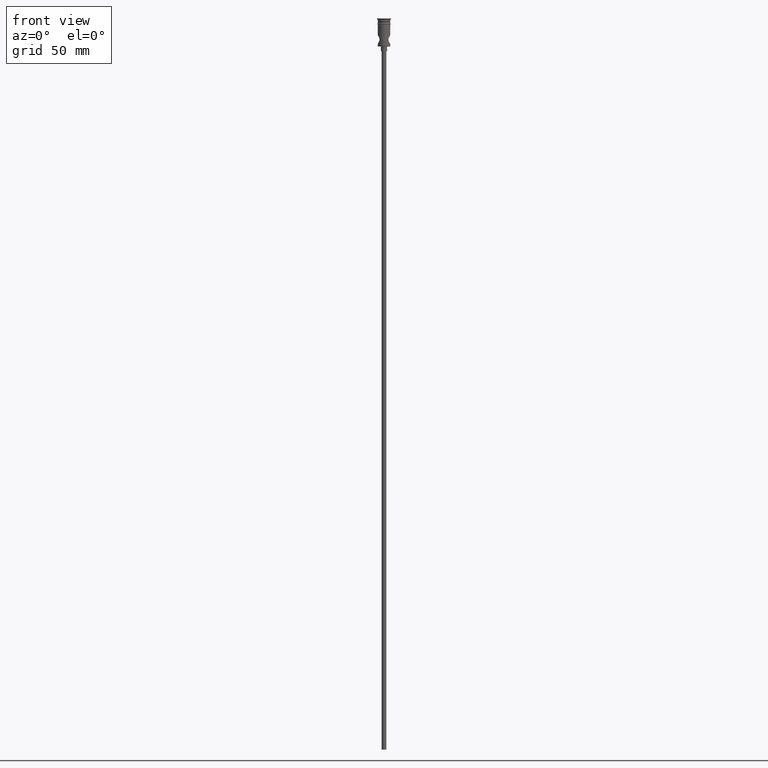
[diagram: clean part render]
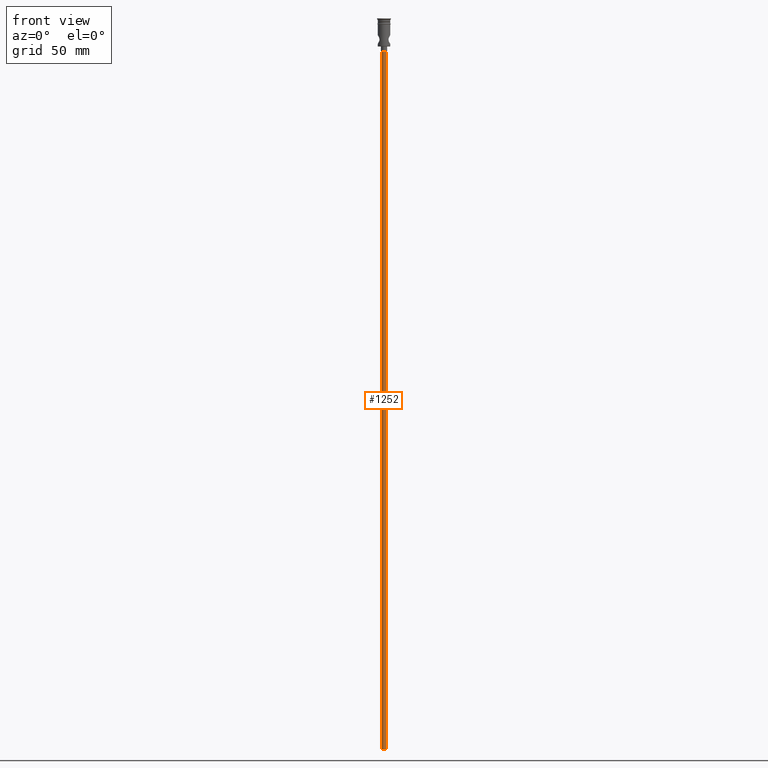
[diagram: same view with one face highlighted and labeled with its STEP entity id]
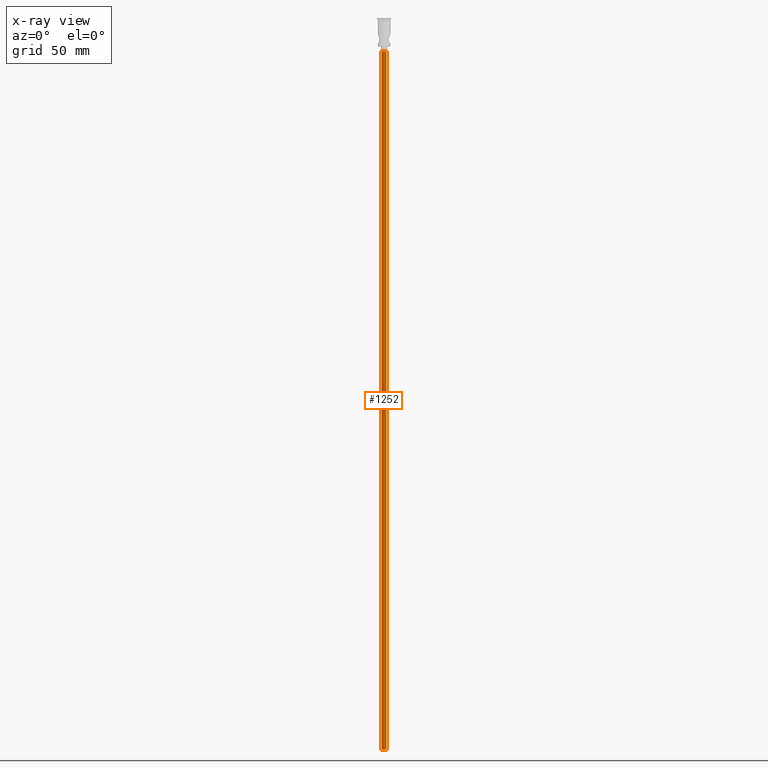
[diagram: x-ray of the same camera — body ghosted, the highlighted face saturated]
A machine part, front view. The second image highlights one B-rep face of the part: STEP entity #1252.
The next image is the same camera in x-ray: the body ghosted, the highlighted face saturated — about 0% of this face is hidden behind the body in this view.
In plain terms, the highlighted cylindrical surface (edge-blend (fillet) strip) has radius 1.5 mm, axis along (-0, -0, 1).
Its self-contained STEP definition (entity closure, byte-faithful):
#5 = CARTESIAN_POINT ( 'NONE',  ( -1.500000000000000222, 1.836970198721030181E-16, -468.0000000000000000 ) ) ;
#77 = VERTEX_POINT ( 'NONE', #1132 ) ;
#133 = AXIS2_PLACEMENT_3D ( 'NONE', #811, #473, #260 ) ;
#172 = DIRECTION ( 'NONE',  ( -1.000000000000000000, 0.000000000000000000, 0.000000000000000000 ) ) ;
#186 = ORIENTED_EDGE ( 'NONE', *, *, #1425, .F. ) ;
#202 = CIRCLE ( 'NONE', #1099, 1.500000000000000222 ) ;
#206 = VERTEX_POINT ( 'NONE', #1291 ) ;
#260 = DIRECTION ( 'NONE',  ( -1.000000000000000000, 0.000000000000000000, 0.000000000000000000 ) ) ;
#262 = CYLINDRICAL_SURFACE ( 'NONE', #945, 1.500000000000000222 ) ;
#277 = DIRECTION ( 'NONE',  ( 1.000000000000000000, 0.000000000000000000, 0.000000000000000000 ) ) ;
#291 = VECTOR ( 'NONE', #1333, 1000.000000000000000 ) ;
#364 = CARTESIAN_POINT ( 'NONE',  ( -1.500000000000000222, 1.836970198721030181E-16, -468.0000000000000000 ) ) ;
#377 = EDGE_CURVE ( 'NONE', #206, #1075, #1119, .T. ) ;
#404 = ORIENTED_EDGE ( 'NONE', *, *, #586, .T. ) ;
#458 = VERTEX_POINT ( 'NONE', #364 ) ;
#473 = DIRECTION ( 'NONE',  ( 0.000000000000000000, 0.000000000000000000, -1.000000000000000000 ) ) ;
#480 = EDGE_CURVE ( 'NONE', #206, #458, #1383, .T. ) ;
#510 = CARTESIAN_POINT ( 'NONE',  ( 1.500000000000000222, 0.000000000000000000, -20.99999999999999645 ) ) ;
#526 = EDGE_LOOP ( 'NONE', ( #186, #607, #948, #404 ) ) ;
#586 = EDGE_CURVE ( 'NONE', #1075, #77, #202, .T. ) ;
#607 = ORIENTED_EDGE ( 'NONE', *, *, #480, .F. ) ;
#811 = CARTESIAN_POINT ( 'NONE',  ( 0.000000000000000000, 0.000000000000000000, -468.0000000000000000 ) ) ;
#895 = CARTESIAN_POINT ( 'NONE',  ( 1.500000000000000222, 0.000000000000000000, -468.0000000000000000 ) ) ;
#901 = VECTOR ( 'NONE', #1007, 1000.000000000000000 ) ;
#945 = AXIS2_PLACEMENT_3D ( 'NONE', #1367, #947, #277 ) ;
#947 = DIRECTION ( 'NONE',  ( -0.000000000000000000, -0.000000000000000000, 1.000000000000000000 ) ) ;
#948 = ORIENTED_EDGE ( 'NONE', *, *, #377, .T. ) ;
#1007 = DIRECTION ( 'NONE',  ( -0.000000000000000000, -0.000000000000000000, 1.000000000000000000 ) ) ;
#1045 = FACE_OUTER_BOUND ( 'NONE', #526, .T. ) ;
#1075 = VERTEX_POINT ( 'NONE', #510 ) ;
#1099 = AXIS2_PLACEMENT_3D ( 'NONE', #1290, #1283, #172 ) ;
#1119 = LINE ( 'NONE', #895, #291 ) ;
#1132 = CARTESIAN_POINT ( 'NONE',  ( -1.500000000000000222, 1.836970198721030181E-16, -20.99999999999999645 ) ) ;
#1252 = ADVANCED_FACE ( 'NONE', ( #1045 ), #262, .T. ) ;
#1283 = DIRECTION ( 'NONE',  ( 0.000000000000000000, 0.000000000000000000, -1.000000000000000000 ) ) ;
#1290 = CARTESIAN_POINT ( 'NONE',  ( 0.000000000000000000, 0.000000000000000000, -20.99999999999999645 ) ) ;
#1291 = CARTESIAN_POINT ( 'NONE',  ( 1.500000000000000222, 0.000000000000000000, -468.0000000000000000 ) ) ;
#1327 = LINE ( 'NONE', #5, #901 ) ;
#1333 = DIRECTION ( 'NONE',  ( -0.000000000000000000, -0.000000000000000000, 1.000000000000000000 ) ) ;
#1367 = CARTESIAN_POINT ( 'NONE',  ( 0.000000000000000000, 0.000000000000000000, -468.0000000000000000 ) ) ;
#1383 = CIRCLE ( 'NONE', #133, 1.500000000000000222 ) ;
#1425 = EDGE_CURVE ( 'NONE', #458, #77, #1327, .T. ) ;